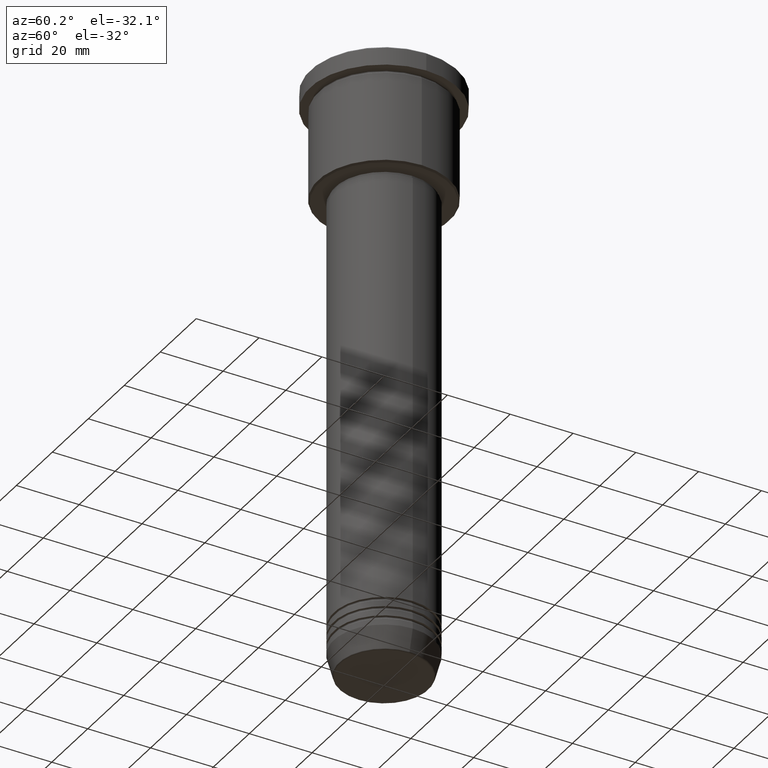
[diagram: clean part render]
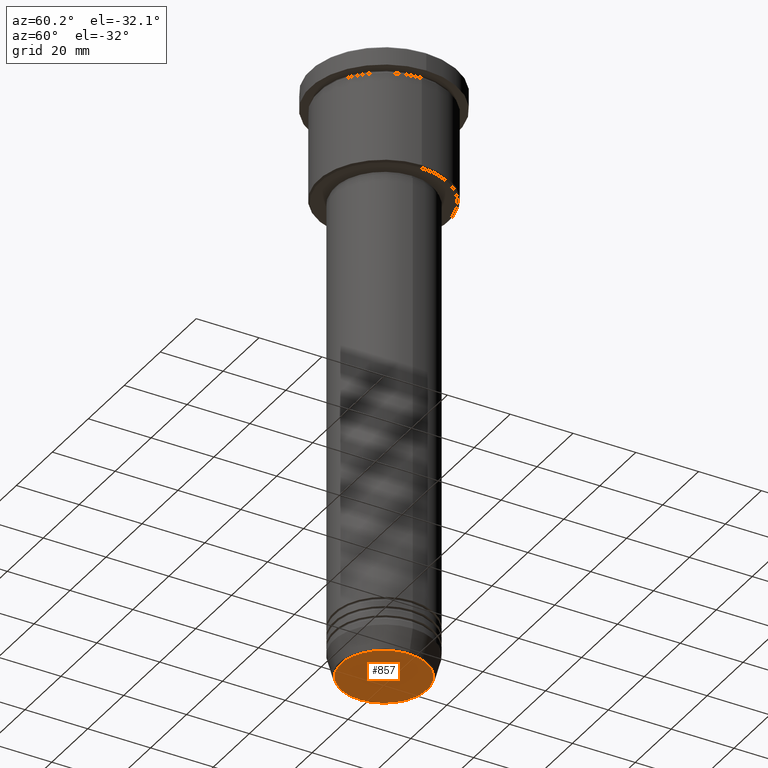
[diagram: same view with one face highlighted and labeled with its STEP entity id]
A machine part, auxiliary view. The second image highlights one B-rep face of the part: STEP entity #857.
In plain terms, the highlighted planar face has unit normal (0, -0, 1).
Its self-contained STEP definition (entity closure, byte-faithful):
#15 = VERTEX_POINT ( 'NONE', #238 ) ;
#21 = EDGE_CURVE ( 'NONE', #15, #628, #677, .T. ) ;
#56 = DIRECTION ( 'NONE',  ( 1.000000000000000000, 0.000000000000000000, 0.000000000000000000 ) ) ;
#192 = PLANE ( 'NONE',  #318 ) ;
#226 = CARTESIAN_POINT ( 'NONE',  ( 0.000000000000000000, 0.000000000000000000, -191.0000000000000000 ) ) ;
#238 = CARTESIAN_POINT ( 'NONE',  ( 13.74069215899266538, 0.000000000000000000, -191.0000000000000000 ) ) ;
#318 = AXIS2_PLACEMENT_3D ( 'NONE', #558, #482, #760 ) ;
#391 = FACE_OUTER_BOUND ( 'NONE', #828, .T. ) ;
#482 = DIRECTION ( 'NONE',  ( 0.000000000000000000, -0.000000000000000000, 1.000000000000000000 ) ) ;
#501 = DIRECTION ( 'NONE',  ( 0.000000000000000000, 0.000000000000000000, -1.000000000000000000 ) ) ;
#525 = AXIS2_PLACEMENT_3D ( 'NONE', #226, #501, #1050 ) ;
#531 = CARTESIAN_POINT ( 'NONE',  ( -13.74069215899266538, 1.712322416342416577E-15, -191.0000000000000000 ) ) ;
#558 = CARTESIAN_POINT ( 'NONE',  ( 0.000000000000000000, 0.000000000000000000, -191.0000000000000000 ) ) ;
#567 = EDGE_CURVE ( 'NONE', #628, #15, #777, .T. ) ;
#595 = CARTESIAN_POINT ( 'NONE',  ( 0.000000000000000000, 0.000000000000000000, -191.0000000000000000 ) ) ;
#628 = VERTEX_POINT ( 'NONE', #531 ) ;
#675 = DIRECTION ( 'NONE',  ( 0.000000000000000000, 0.000000000000000000, -1.000000000000000000 ) ) ;
#677 = CIRCLE ( 'NONE', #693, 13.74069215899266538 ) ;
#693 = AXIS2_PLACEMENT_3D ( 'NONE', #595, #675, #56 ) ;
#760 = DIRECTION ( 'NONE',  ( 1.000000000000000000, 0.000000000000000000, 0.000000000000000000 ) ) ;
#777 = CIRCLE ( 'NONE', #525, 13.74069215899266538 ) ;
#822 = ORIENTED_EDGE ( 'NONE', *, *, #21, .T. ) ;
#828 = EDGE_LOOP ( 'NONE', ( #822, #1177 ) ) ;
#857 = ADVANCED_FACE ( 'NONE', ( #391 ), #192, .F. ) ;
#1050 = DIRECTION ( 'NONE',  ( 1.000000000000000000, 0.000000000000000000, 0.000000000000000000 ) ) ;
#1177 = ORIENTED_EDGE ( 'NONE', *, *, #567, .T. ) ;